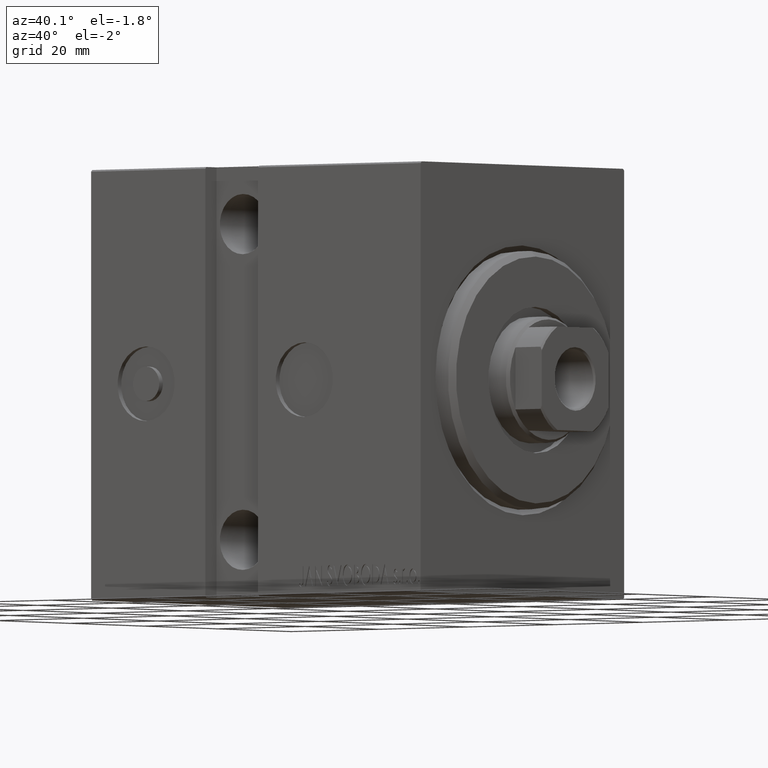
[diagram: clean part render]
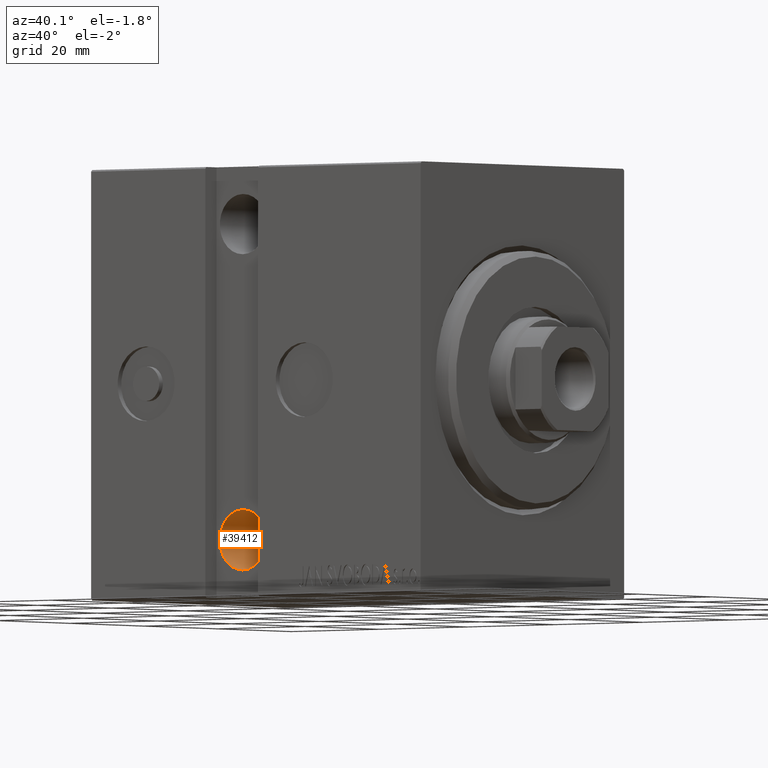
[diagram: same view with one face highlighted and labeled with its STEP entity id]
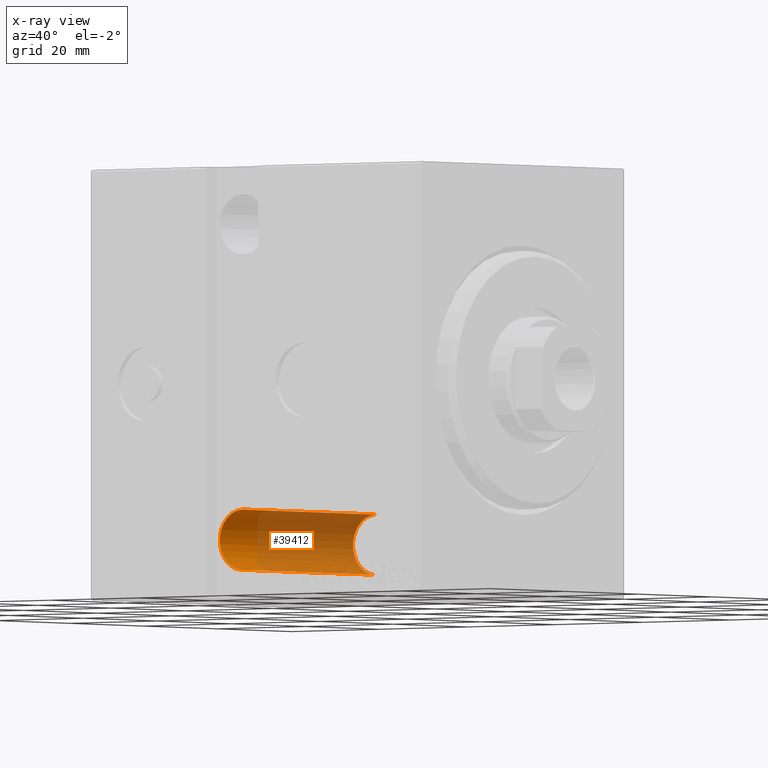
[diagram: x-ray of the same camera — body ghosted, the highlighted face saturated]
A machine part, auxiliary view. The second image highlights one B-rep face of the part: STEP entity #39412.
The next image is the same camera in x-ray: the body ghosted, the highlighted face saturated — about 75% of this face is hidden behind the body in this view.
In plain terms, the highlighted cylindrical surface (edge-blend (fillet) strip) has radius 5.25 mm, axis along (0, -1, 0).
Its self-contained STEP definition (entity closure, byte-faithful):
#3338 = EDGE_CURVE ( 'NONE', #39339, #12980, #16224, .T. ) ;
#4202 = CARTESIAN_POINT ( 'NONE',  ( 43.00000000000001421, -27.50000000000002487, -32.74999999999999289 ) ) ;
#4249 = ORIENTED_EDGE ( 'NONE', *, *, #23880, .F. ) ;
#4340 = DIRECTION ( 'NONE',  ( 0.000000000000000000, 0.000000000000000000, -1.000000000000000000 ) ) ;
#5036 = CARTESIAN_POINT ( 'NONE',  ( 43.00000000000001421, -11.50000000000000888, -32.74999999999999289 ) ) ;
#7337 = VERTEX_POINT ( 'NONE', #5036 ) ;
#8886 = CARTESIAN_POINT ( 'NONE',  ( 43.00000000000001421, 24.50000000000000000, -32.74999999999999289 ) ) ;
#10672 = EDGE_CURVE ( 'NONE', #7337, #17033, #30428, .T. ) ;
#11181 = DIRECTION ( 'NONE',  ( -0.000000000000000000, 1.000000000000000000, -1.963837897332234442E-16 ) ) ;
#12980 = VERTEX_POINT ( 'NONE', #18569 ) ;
#13404 = DIRECTION ( 'NONE',  ( -0.000000000000000000, 1.000000000000000000, -0.000000000000000000 ) ) ;
#13825 = AXIS2_PLACEMENT_3D ( 'NONE', #40241, #20656, #4340 ) ;
#15876 = DIRECTION ( 'NONE',  ( 0.000000000000000000, 0.000000000000000000, 1.000000000000000000 ) ) ;
#16224 = LINE ( 'NONE', #33198, #36591 ) ;
#17033 = VERTEX_POINT ( 'NONE', #8886 ) ;
#18569 = CARTESIAN_POINT ( 'NONE',  ( 43.00000000000001421, 24.50000000000000000, -22.25000000000000355 ) ) ;
#20524 = DIRECTION ( 'NONE',  ( -0.000000000000000000, 1.000000000000000000, -0.000000000000000000 ) ) ;
#20656 = DIRECTION ( 'NONE',  ( 0.000000000000000000, -1.000000000000000000, 0.000000000000000000 ) ) ;
#21068 = ORIENTED_EDGE ( 'NONE', *, *, #37159, .F. ) ;
#22122 = DIRECTION ( 'NONE',  ( -0.000000000000000000, 1.000000000000000000, -0.000000000000000000 ) ) ;
#22364 = AXIS2_PLACEMENT_3D ( 'NONE', #31801, #22122, #15876 ) ;
#23880 = EDGE_CURVE ( 'NONE', #17033, #12980, #32407, .T. ) ;
#24186 = ORIENTED_EDGE ( 'NONE', *, *, #10672, .F. ) ;
#27778 = AXIS2_PLACEMENT_3D ( 'NONE', #33985, #11181, #41285 ) ;
#30428 = LINE ( 'NONE', #4202, #41145 ) ;
#31801 = CARTESIAN_POINT ( 'NONE',  ( 43.00000000000001421, -27.50000000000002487, -27.50000000000000000 ) ) ;
#32228 = CYLINDRICAL_SURFACE ( 'NONE', #22364, 5.249999999999997335 ) ;
#32407 = CIRCLE ( 'NONE', #13825, 5.249999999999994671 ) ;
#33198 = CARTESIAN_POINT ( 'NONE',  ( 43.00000000000001421, -27.50000000000002487, -22.25000000000000355 ) ) ;
#33985 = CARTESIAN_POINT ( 'NONE',  ( 43.00000000000001421, -11.50000000000000711, -27.50000000000000000 ) ) ;
#35021 = FACE_OUTER_BOUND ( 'NONE', #38517, .T. ) ;
#35337 = CIRCLE ( 'NONE', #27778, 5.249999999999994671 ) ;
#36591 = VECTOR ( 'NONE', #13404, 1000.000000000000000 ) ;
#37159 = EDGE_CURVE ( 'NONE', #39339, #7337, #35337, .T. ) ;
#38517 = EDGE_LOOP ( 'NONE', ( #24186, #21068, #40595, #4249 ) ) ;
#38687 = CARTESIAN_POINT ( 'NONE',  ( 43.00000000000001421, -11.50000000000000533, -22.25000000000000355 ) ) ;
#39339 = VERTEX_POINT ( 'NONE', #38687 ) ;
#39412 = ADVANCED_FACE ( 'NONE', ( #35021 ), #32228, .F. ) ;
#40241 = CARTESIAN_POINT ( 'NONE',  ( 43.00000000000001421, 24.50000000000000000, -27.50000000000000000 ) ) ;
#40595 = ORIENTED_EDGE ( 'NONE', *, *, #3338, .T. ) ;
#41145 = VECTOR ( 'NONE', #20524, 1000.000000000000000 ) ;
#41285 = DIRECTION ( 'NONE',  ( 0.000000000000000000, -3.304235192336778963E-16, -1.000000000000000000 ) ) ;